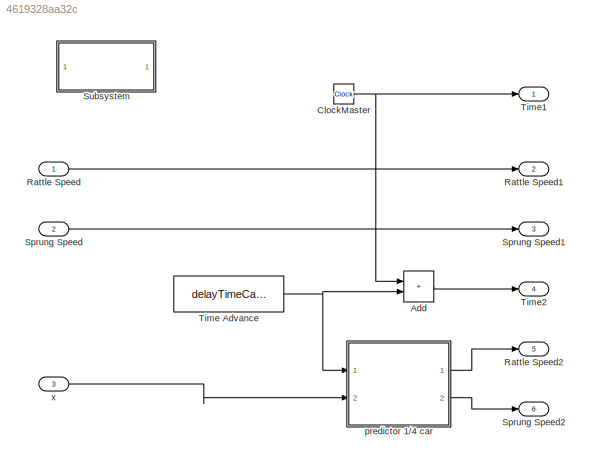
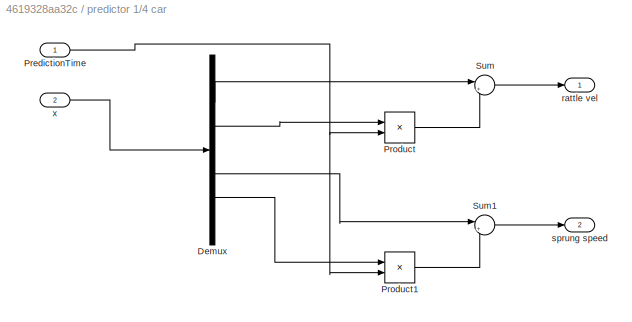
MODEL slx_4619328aa32c
KIND model
CONFIG AbsTol = auto
CONFIG EnableMultiTasking = off
CONFIG FixedStep = 0.001
CONFIG MaxStep = auto
CONFIG MinStep = auto
CONFIG RelTol = 1e-3
CONFIG SampleTimeConstraint = Unconstrained
CONFIG SolverName = ode1
CONFIG StartTime = 0.0
CONFIG StopTime = inf
BLOCK [SubSystem]  predictor 1//4 car
  Ports = [2, 2]
  RequestExecContextInheritance = off
  TreatAsAtomicUnit = on
BLOCK [Demux]  predictor 1//4 car/Demux
  Outputs = 7
  Ports = [1, 7]
BLOCK [Inport]  predictor 1//4 car/PredictionTime
BLOCK [Product]  predictor 1//4 car/Product
  Ports = [2, 1]
BLOCK [Product]  predictor 1//4 car/Product1
  Ports = [2, 1]
BLOCK [Sum]  predictor 1//4 car/Sum
  Inputs = |++
  Ports = [2, 1]
BLOCK [Sum]  predictor 1//4 car/Sum1
  Inputs = |++
  Ports = [2, 1]
BLOCK [Outport]  predictor 1//4 car/rattle vel
BLOCK [Outport]  predictor 1//4 car/sprung speed
  Port = 2
BLOCK [Inport]  predictor 1//4 car/x
  Port = 2
BLOCK [Sum] Add
  IconShape = rectangular
  Ports = [2, 1]
BLOCK [Clock] ClockMaster
BLOCK [Inport] Rattle Speed
BLOCK [Outport] Rattle Speed1
  Port = 2
BLOCK [Outport] Rattle Speed2
  Port = 5
BLOCK [Inport] Sprung Speed
  Port = 2
BLOCK [Outport] Sprung Speed1
  Port = 3
BLOCK [Outport] Sprung Speed2
  Port = 6
BLOCK [SubSystem] Subsystem
  OpenFcn = k_tire = 225400;  %200000 in literature\nc_tire = 100;        % Estimated. In literatures 6N\nk_susp =  25000;  % 15000 in literature\nc_susp = 400;       %1429 Ns/m in literature\ng = 0 % 9.8; Removed to avoid initialization problems\nm_unsprung = 66;\nm_sprung = 449.25;\nX_sprung0  = .5;\nX_unsprung0  = .1;\ndelayTimeCarToDamper =  0.002;\n%InitQuarterCarCompensatorScript;\n%Amplitude =.01;
  Ports = []
  RequestExecContextInheritance = off
BLOCK [Constant] Time Advance
  Value = delayTimeCarToDamper
BLOCK [Outport] Time1
BLOCK [Outport] Time2
  Port = 4
BLOCK [Inport] x
  Port = 3
LINE  predictor 1//4 car/Demux:2 ->  predictor 1//4 car/Sum:1
LINE  predictor 1//4 car/Demux:3 ->  predictor 1//4 car/Product:1
LINE  predictor 1//4 car/Demux:5 ->  predictor 1//4 car/Sum1:1
LINE  predictor 1//4 car/Demux:6 ->  predictor 1//4 car/Product1:1
NET  predictor 1//4 car/PredictionTime:1 ->  predictor 1//4 car/Product1:2,  predictor 1//4 car/Product:2
LINE  predictor 1//4 car/Product1:1 ->  predictor 1//4 car/Sum1:2
LINE  predictor 1//4 car/Product:1 ->  predictor 1//4 car/Sum:2
LINE  predictor 1//4 car/Sum1:1 ->  predictor 1//4 car/sprung speed:1
LINE  predictor 1//4 car/Sum:1 ->  predictor 1//4 car/rattle vel:1
LINE  predictor 1//4 car/x:1 ->  predictor 1//4 car/Demux:1
LINE  predictor 1//4 car:1 -> Rattle Speed2:1
LINE  predictor 1//4 car:2 -> Sprung Speed2:1
LINE Add:1 -> Time2:1
NET ClockMaster:1 -> Add:1, Time1:1
LINE Rattle Speed:1 -> Rattle Speed1:1
LINE Sprung Speed:1 -> Sprung Speed1:1
NET Time Advance:1 ->  predictor 1//4 car:1, Add:2
LINE x:1 ->  predictor 1//4 car:2
note: NET lines group one-source signal fan-out (src -> all destinations, sorted); 1:1 wires keep LINE
